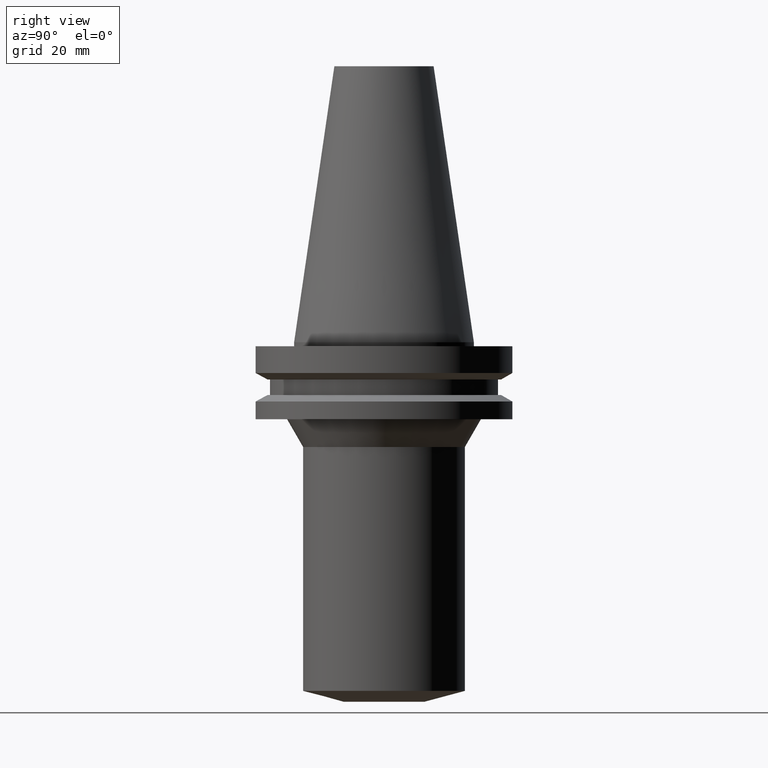
[diagram: clean part render]
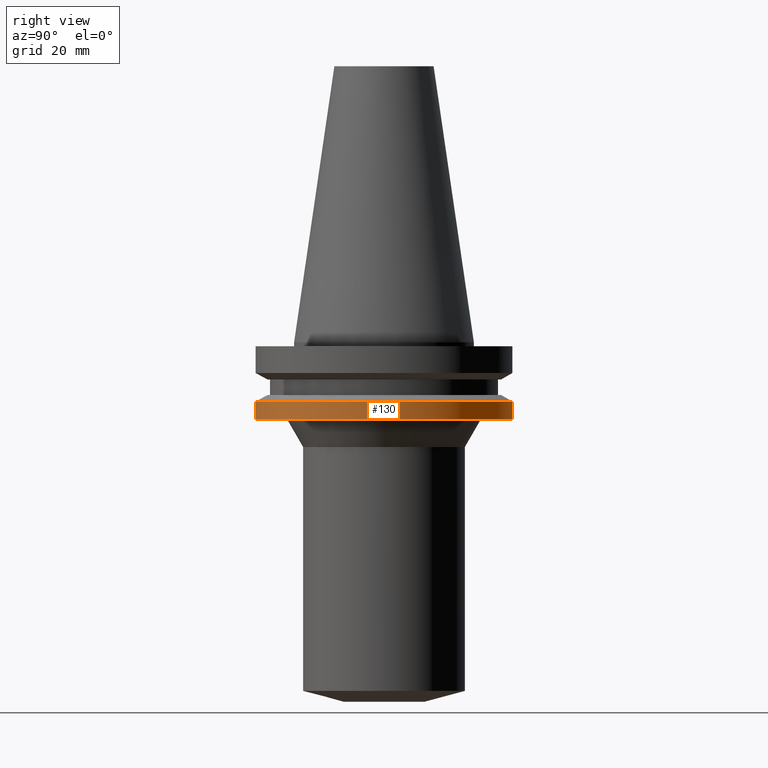
[diagram: same view with one face highlighted and labeled with its STEP entity id]
A machine part, right view. The second image highlights one B-rep face of the part: STEP entity #130.
In plain terms, the highlighted cylindrical surface (bore or boss wall) has radius 31.75 mm, axis along (0, 0, -1).
Its self-contained STEP definition (entity closure, byte-faithful):
#101=EDGE_CURVE('Unnamed[1]',#223,#223,#224,.T.);
#112=EDGE_CURVE('Unnamed[1]',#240,#240,#241,.T.);
#130=ADVANCED_FACE('Unnamed[1]',(#267,#268),#269,.T.);
#223=VERTEX_POINT('',#372);
#224=CIRCLE('',#373,31.75);
#240=VERTEX_POINT('',#394);
#241=CIRCLE('',#395,31.75);
#267=FACE_BOUND('',#428,.T.);
#268=FACE_BOUND('',#429,.T.);
#269=CYLINDRICAL_SURFACE('',#430,31.75);
#372=CARTESIAN_POINT('',(8.97247689112643E-016,31.75,-14.65316677));
#373=AXIS2_PLACEMENT_3D('',#520,#521,#522);
#394=CARTESIAN_POINT('',(1.16647607618785E-015,31.75,-19.05));
#395=AXIS2_PLACEMENT_3D('',#538,#539,#540);
#428=EDGE_LOOP('',(#568));
#429=EDGE_LOOP('',(#569));
#430=AXIS2_PLACEMENT_3D('',#570,#571,#572);
#520=CARTESIAN_POINT('',(8.97247689112643E-016,1.79449537822529E-015,-14.65316677));
#521=DIRECTION('',(6.12323399573677E-017,1.22464679914735E-016,-1.0));
#522=DIRECTION('',(-1.23259516440783E-032,1.0,1.22464679914735E-016));
#538=CARTESIAN_POINT('',(1.16647607618785E-015,2.33295215237571E-015,-19.05));
#539=DIRECTION('',(6.12323399573677E-017,1.22464679914735E-016,-1.0));
#540=DIRECTION('',(-1.23259516440783E-032,1.0,1.22464679914735E-016));
#568=ORIENTED_EDGE('',*,*,#112,.F.);
#569=ORIENTED_EDGE('',*,*,#101,.T.);
#570=CARTESIAN_POINT('',(1.03186188265025E-015,2.0637237653005E-015,-16.851583385));
#571=DIRECTION('',(6.12323399573677E-017,1.22464679914735E-016,-1.0));
#572=DIRECTION('',(-1.23259516440783E-032,1.0,1.22464679914735E-016));